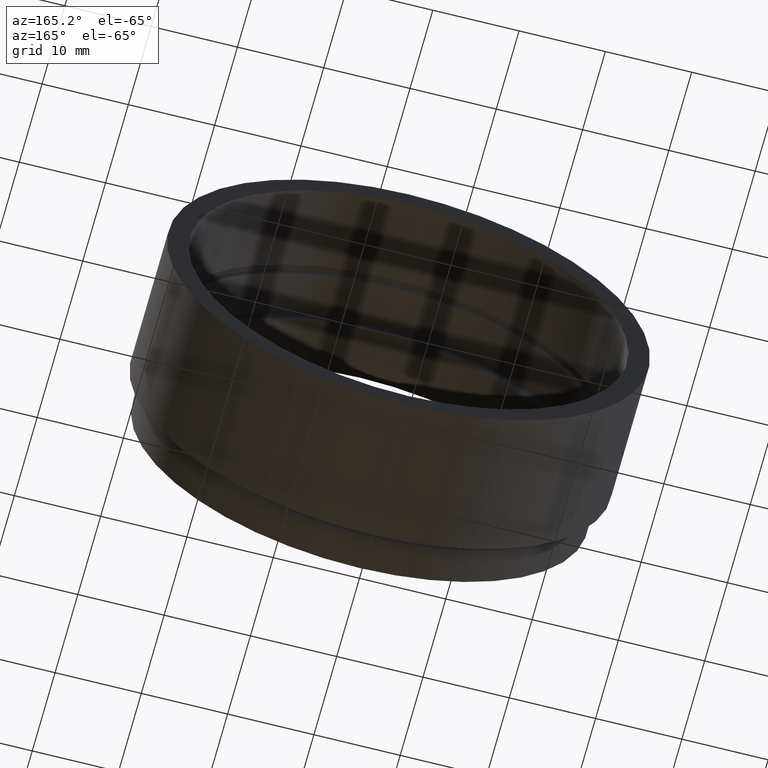
[diagram: clean part render]
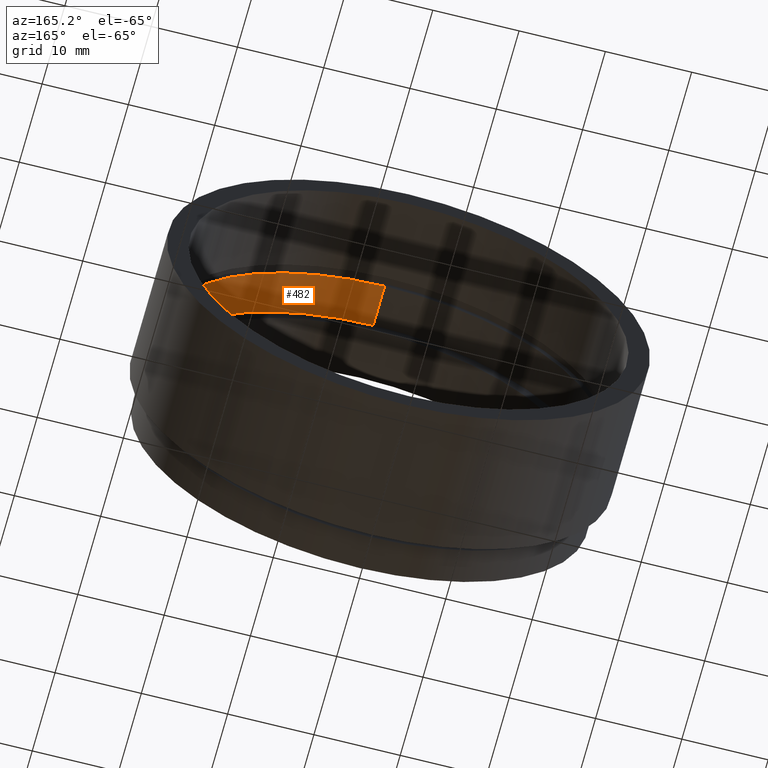
[diagram: same view with one face highlighted and labeled with its STEP entity id]
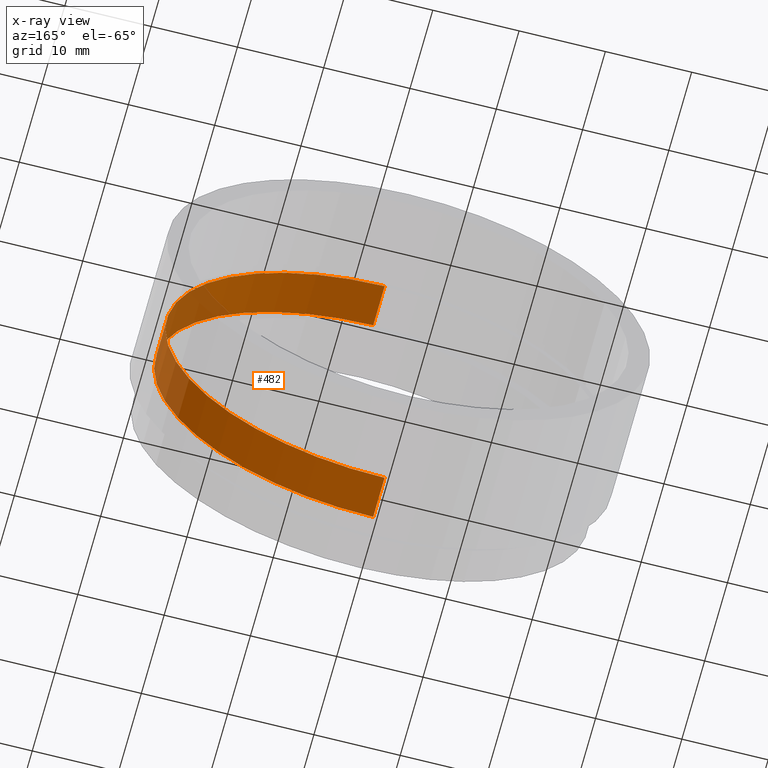
[diagram: x-ray of the same camera — body ghosted, the highlighted face saturated]
A machine part, auxiliary view. The second image highlights one B-rep face of the part: STEP entity #482.
The next image is the same camera in x-ray: the body ghosted, the highlighted face saturated — about 10% of this face is hidden behind the body in this view.
In plain terms, the highlighted cylindrical surface (partial cylindrical patch) has radius 25.4 mm, axis along (-0, -1, -0).
Its self-contained STEP definition (entity closure, byte-faithful):
#17 = CARTESIAN_POINT ( 'NONE',  ( 0.0000000000000000000, 6.000000000000000900, 0.0000000000000000000 ) ) ;
#42 = DIRECTION ( 'NONE',  ( -0.0000000000000000000, -1.000000000000000000, -0.0000000000000000000 ) ) ;
#56 = CARTESIAN_POINT ( 'NONE',  ( 3.110602869834276900E-015, 0.0000000000000000000, 25.39999999999999900 ) ) ;
#93 = ORIENTED_EDGE ( 'NONE', *, *, #659, .T. ) ;
#103 = DIRECTION ( 'NONE',  ( 0.0000000000000000000, 0.0000000000000000000, -1.000000000000000000 ) ) ;
#130 = EDGE_CURVE ( 'NONE', #533, #635, #520, .T. ) ;
#132 = AXIS2_PLACEMENT_3D ( 'NONE', #258, #538, #555 ) ;
#136 = ORIENTED_EDGE ( 'NONE', *, *, #130, .T. ) ;
#173 = CARTESIAN_POINT ( 'NONE',  ( 3.110602869834277700E-015, 11.00000000000000200, 25.40000000000000600 ) ) ;
#233 = DIRECTION ( 'NONE',  ( -0.0000000000000000000, -1.000000000000000000, -0.0000000000000000000 ) ) ;
#237 = AXIS2_PLACEMENT_3D ( 'NONE', #573, #268, #103 ) ;
#253 = CARTESIAN_POINT ( 'NONE',  ( 0.0000000000000000000, 0.0000000000000000000, -25.39999999999999900 ) ) ;
#258 = CARTESIAN_POINT ( 'NONE',  ( 0.0000000000000000000, 11.00000000000000200, 0.0000000000000000000 ) ) ;
#268 = DIRECTION ( 'NONE',  ( -0.0000000000000000000, -1.000000000000000000, -0.0000000000000000000 ) ) ;
#321 = DIRECTION ( 'NONE',  ( -0.0000000000000000000, -1.000000000000000000, -0.0000000000000000000 ) ) ;
#333 = CARTESIAN_POINT ( 'NONE',  ( 0.0000000000000000000, 6.000000000000000900, -25.39999999999999900 ) ) ;
#350 = EDGE_LOOP ( 'NONE', ( #625, #395, #136, #93 ) ) ;
#372 = CIRCLE ( 'NONE', #391, 25.39999999999999900 ) ;
#391 = AXIS2_PLACEMENT_3D ( 'NONE', #17, #233, #592 ) ;
#395 = ORIENTED_EDGE ( 'NONE', *, *, #479, .F. ) ;
#432 = VERTEX_POINT ( 'NONE', #173 ) ;
#479 = EDGE_CURVE ( 'NONE', #533, #432, #666, .T. ) ;
#482 = ADVANCED_FACE ( 'NONE', ( #644 ), #528, .F. ) ;
#520 = LINE ( 'NONE', #253, #548 ) ;
#527 = CARTESIAN_POINT ( 'NONE',  ( 3.110602869834276900E-015, 6.000000000000000900, 25.39999999999999900 ) ) ;
#528 = CYLINDRICAL_SURFACE ( 'NONE', #237, 25.39999999999999900 ) ;
#533 = VERTEX_POINT ( 'NONE', #668 ) ;
#538 = DIRECTION ( 'NONE',  ( -0.0000000000000000000, -1.000000000000000000, -0.0000000000000000000 ) ) ;
#539 = EDGE_CURVE ( 'NONE', #432, #550, #544, .T. ) ;
#544 = LINE ( 'NONE', #56, #627 ) ;
#548 = VECTOR ( 'NONE', #321, 1000.000000000000000 ) ;
#550 = VERTEX_POINT ( 'NONE', #527 ) ;
#555 = DIRECTION ( 'NONE',  ( 0.0000000000000000000, 0.0000000000000000000, -1.000000000000000000 ) ) ;
#573 = CARTESIAN_POINT ( 'NONE',  ( 0.0000000000000000000, 0.0000000000000000000, 0.0000000000000000000 ) ) ;
#592 = DIRECTION ( 'NONE',  ( 0.0000000000000000000, 0.0000000000000000000, -1.000000000000000000 ) ) ;
#625 = ORIENTED_EDGE ( 'NONE', *, *, #539, .F. ) ;
#627 = VECTOR ( 'NONE', #42, 1000.000000000000000 ) ;
#635 = VERTEX_POINT ( 'NONE', #333 ) ;
#644 = FACE_OUTER_BOUND ( 'NONE', #350, .T. ) ;
#659 = EDGE_CURVE ( 'NONE', #635, #550, #372, .T. ) ;
#666 = CIRCLE ( 'NONE', #132, 25.40000000000000200 ) ;
#668 = CARTESIAN_POINT ( 'NONE',  ( 0.0000000000000000000, 11.00000000000000200, -25.40000000000000200 ) ) ;